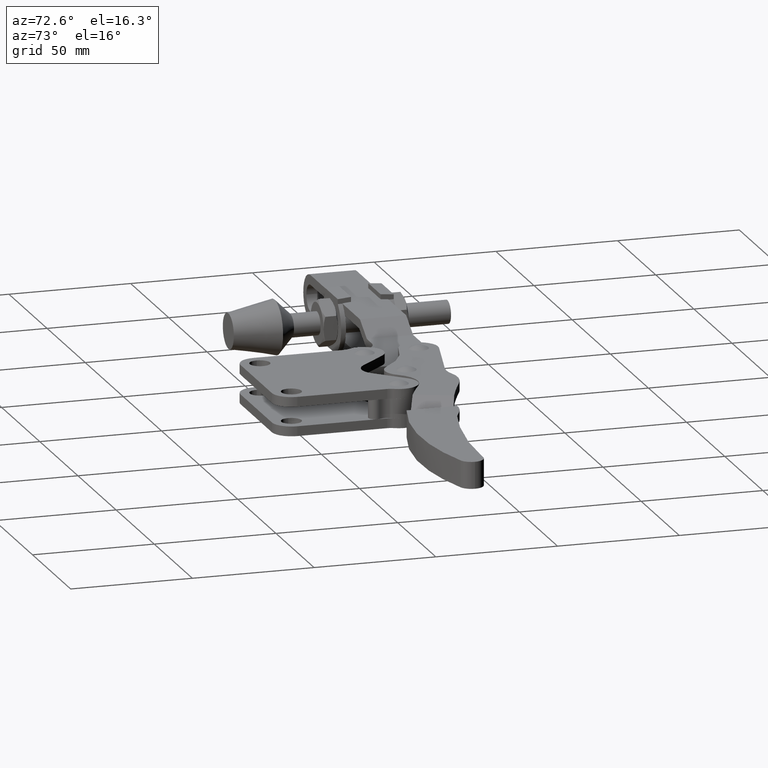
[diagram: clean part render]
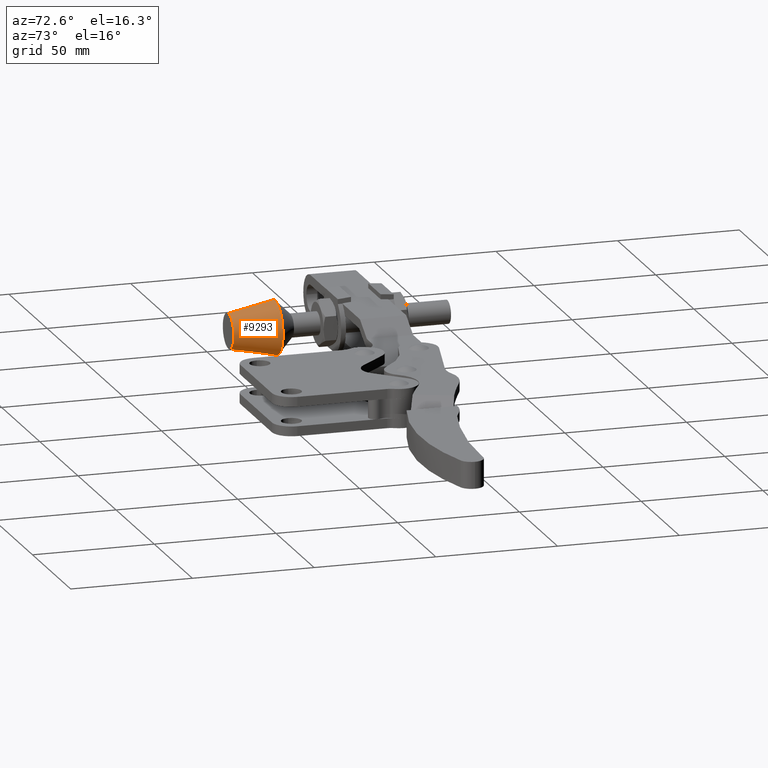
[diagram: same view with one face highlighted and labeled with its STEP entity id]
A machine part, auxiliary view. The second image highlights one B-rep face of the part: STEP entity #9293.
In plain terms, the highlighted conical surface has half-angle 11.744 deg.
Its self-contained STEP definition (entity closure, byte-faithful):
#160 = ORIENTED_EDGE ( 'NONE', *, *, #320, .T. ) ;
#305 = CARTESIAN_POINT ( 'NONE',  ( -121.9723739970631700, 4.466063264486873200E-017, -11.25000000000024900 ) ) ;
#320 = EDGE_CURVE ( 'NONE', #5397, #9527, #8485, .T. ) ;
#428 = AXIS2_PLACEMENT_3D ( 'NONE', #8427, #4010, #9180 ) ;
#444 = DIRECTION ( 'NONE',  ( 0.0000000000000000000, 0.0000000000000000000, -1.000000000000000000 ) ) ;
#999 = CARTESIAN_POINT ( 'NONE',  ( -121.9723739970631700, 4.466063264486873200E-017, 3.249999999999751300 ) ) ;
#1024 = DIRECTION ( 'NONE',  ( 0.0000000000000000000, 0.0000000000000000000, 1.000000000000000000 ) ) ;
#1308 = EDGE_LOOP ( 'NONE', ( #5299, #160, #3360, #6097 ) ) ;
#1357 = LINE ( 'NONE', #999, #7266 ) ;
#1936 = CARTESIAN_POINT ( 'NONE',  ( -121.9723739970631700, 4.466063264486873200E-017, -11.25000000000024900 ) ) ;
#2601 = CARTESIAN_POINT ( 'NONE',  ( -121.9723739970631700, 19.00000000000000000, 7.199999999999750600 ) ) ;
#2929 = FACE_OUTER_BOUND ( 'NONE', #1308, .T. ) ;
#3051 = VERTEX_POINT ( 'NONE', #2601 ) ;
#3360 = ORIENTED_EDGE ( 'NONE', *, *, #4882, .T. ) ;
#3578 = CIRCLE ( 'NONE', #7615, 11.19999999999999800 ) ;
#3944 = DIRECTION ( 'NONE',  ( 0.0000000000000000000, 1.000000000000000000, 0.0000000000000000000 ) ) ;
#3978 = CONICAL_SURFACE ( 'NONE', #9538, 7.250000000000000000, 0.2049750003548368200 ) ;
#4010 = DIRECTION ( 'NONE',  ( -0.0000000000000000000, -1.000000000000000000, -0.0000000000000000000 ) ) ;
#4855 = DIRECTION ( 'NONE',  ( -0.0000000000000000000, -1.000000000000000000, -0.0000000000000000000 ) ) ;
#4882 = EDGE_CURVE ( 'NONE', #9527, #3051, #3578, .T. ) ;
#5299 = ORIENTED_EDGE ( 'NONE', *, *, #9296, .F. ) ;
#5397 = VERTEX_POINT ( 'NONE', #1936 ) ;
#5444 = DIRECTION ( 'NONE',  ( 0.0000000000000000000, 0.9790660733203211400, 0.2035426836639615000 ) ) ;
#5579 = VERTEX_POINT ( 'NONE', #9382 ) ;
#5957 = CIRCLE ( 'NONE', #428, 7.250000000000000000 ) ;
#6078 = VECTOR ( 'NONE', #7654, 1000.000000000000000 ) ;
#6097 = ORIENTED_EDGE ( 'NONE', *, *, #7066, .F. ) ;
#6921 = CARTESIAN_POINT ( 'NONE',  ( -121.9723739970631700, 4.466063264486873200E-017, -4.000000000000248700 ) ) ;
#7066 = EDGE_CURVE ( 'NONE', #5579, #3051, #1357, .T. ) ;
#7266 = VECTOR ( 'NONE', #5444, 1000.000000000000000 ) ;
#7615 = AXIS2_PLACEMENT_3D ( 'NONE', #9299, #4855, #444 ) ;
#7654 = DIRECTION ( 'NONE',  ( 2.492678960389327100E-017, 0.9790660733203211400, -0.2035426836639615000 ) ) ;
#8427 = CARTESIAN_POINT ( 'NONE',  ( -121.9723739970631700, 4.466063264486873200E-017, -4.000000000000248700 ) ) ;
#8485 = LINE ( 'NONE', #305, #6078 ) ;
#8709 = CARTESIAN_POINT ( 'NONE',  ( -121.9723739970631700, 19.00000000000000000, -15.20000000000024800 ) ) ;
#9180 = DIRECTION ( 'NONE',  ( 0.0000000000000000000, 0.0000000000000000000, -1.000000000000000000 ) ) ;
#9293 = ADVANCED_FACE ( 'NONE', ( #2929 ), #3978, .T. ) ;
#9296 = EDGE_CURVE ( 'NONE', #5397, #5579, #5957, .T. ) ;
#9299 = CARTESIAN_POINT ( 'NONE',  ( -121.9723739970631700, 19.00000000000000000, -4.000000000000248700 ) ) ;
#9382 = CARTESIAN_POINT ( 'NONE',  ( -121.9723739970631700, 4.466063264486873200E-017, 3.249999999999751300 ) ) ;
#9527 = VERTEX_POINT ( 'NONE', #8709 ) ;
#9538 = AXIS2_PLACEMENT_3D ( 'NONE', #6921, #3944, #1024 ) ;